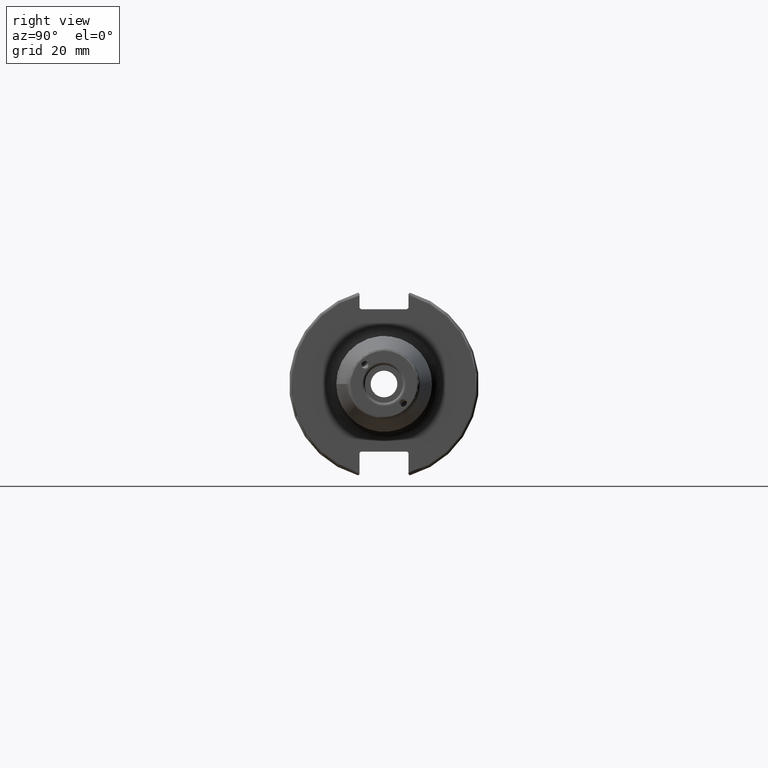
[diagram: clean part render]
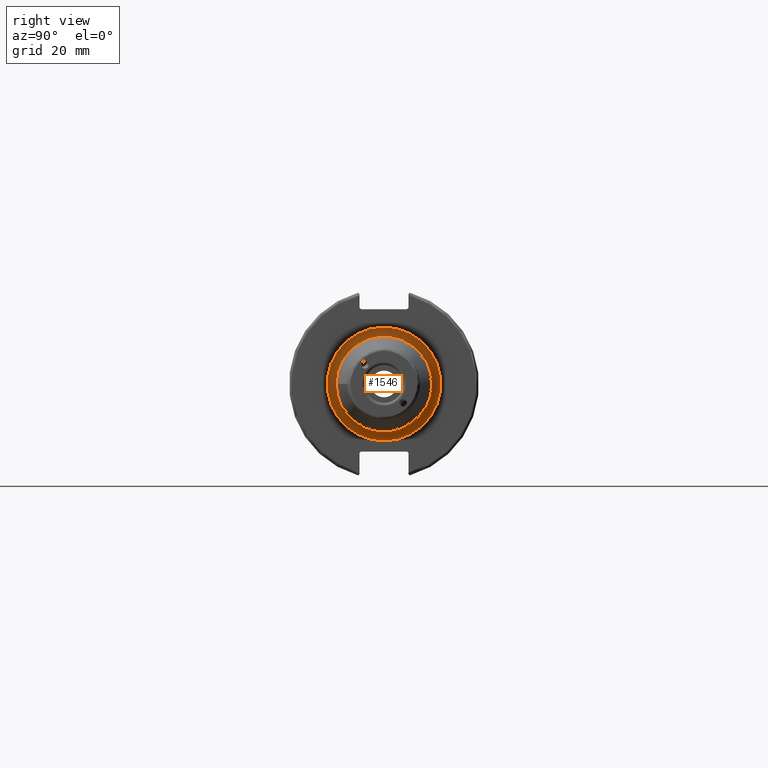
[diagram: same view with one face highlighted and labeled with its STEP entity id]
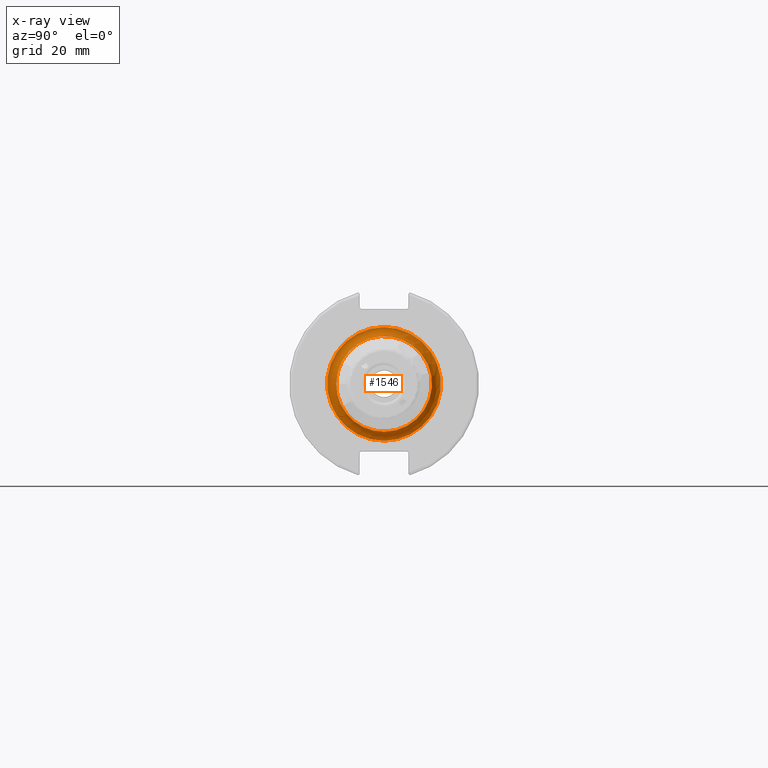
[diagram: x-ray of the same camera — body ghosted, the highlighted face saturated]
A machine part, right view. The second image highlights one B-rep face of the part: STEP entity #1546.
The next image is the same camera in x-ray: the body ghosted, the highlighted face saturated — about 1% of this face is hidden behind the body in this view.
In plain terms, the highlighted toroidal blend (fillet) surface has major radius 19 mm and minor (blend) radius 3 mm.
Its self-contained STEP definition (entity closure, byte-faithful):
#379=FACE_OUTER_BOUND('',#474,.T.);
#474=EDGE_LOOP('',(#1076,#1077,#1078,#1079,#1080));
#586=CIRCLE('',#1674,16.);
#587=CIRCLE('',#1675,3.);
#588=CIRCLE('',#1676,19.);
#589=CIRCLE('',#1677,16.);
#664=VERTEX_POINT('',#2355);
#665=VERTEX_POINT('',#2356);
#666=VERTEX_POINT('',#2358);
#826=EDGE_CURVE('',#664,#665,#586,.T.);
#827=EDGE_CURVE('',#665,#666,#587,.T.);
#828=EDGE_CURVE('',#666,#666,#588,.T.);
#829=EDGE_CURVE('',#665,#664,#589,.T.);
#1076=ORIENTED_EDGE('',*,*,#826,.T.);
#1077=ORIENTED_EDGE('',*,*,#827,.T.);
#1078=ORIENTED_EDGE('',*,*,#828,.T.);
#1079=ORIENTED_EDGE('',*,*,#827,.F.);
#1080=ORIENTED_EDGE('',*,*,#829,.T.);
#1534=TOROIDAL_SURFACE('',#1673,19.,3.);
#1546=ADVANCED_FACE('',(#379),#1534,.F.);
#1673=AXIS2_PLACEMENT_3D('',#2354,#1884,#1885);
#1674=AXIS2_PLACEMENT_3D('',#2357,#1886,#1887);
#1675=AXIS2_PLACEMENT_3D('',#2359,#1888,#1889);
#1676=AXIS2_PLACEMENT_3D('',#2360,#1890,#1891);
#1677=AXIS2_PLACEMENT_3D('',#2361,#1892,#1893);
#1884=DIRECTION('center_axis',(-1.,0.,0.));
#1885=DIRECTION('ref_axis',(0.,0.,1.));
#1886=DIRECTION('center_axis',(-1.,0.,0.));
#1887=DIRECTION('ref_axis',(0.,-1.,-1.22464679914735E-16));
#1888=DIRECTION('center_axis',(0.,-1.,1.22464679914735E-16));
#1889=DIRECTION('ref_axis',(0.,-1.22464679914735E-16,-1.));
#1890=DIRECTION('center_axis',(1.,0.,0.));
#1891=DIRECTION('ref_axis',(0.,-1.,-1.22464679914735E-16));
#1892=DIRECTION('center_axis',(-1.,0.,0.));
#1893=DIRECTION('ref_axis',(0.,-1.,-1.22464679914735E-16));
#2354=CARTESIAN_POINT('Origin',(22.05,0.,0.));
#2355=CARTESIAN_POINT('',(22.05,-16.,-1.95943487863577E-15));
#2356=CARTESIAN_POINT('',(22.05,-1.95943487863577E-15,-16.));
#2357=CARTESIAN_POINT('Origin',(22.05,0.,0.));
#2358=CARTESIAN_POINT('',(19.05,-2.32682891837997E-15,-19.));
#2359=CARTESIAN_POINT('Origin',(22.05,-2.32682891837997E-15,-19.));
#2360=CARTESIAN_POINT('Origin',(19.05,0.,0.));
#2361=CARTESIAN_POINT('Origin',(22.05,0.,0.));